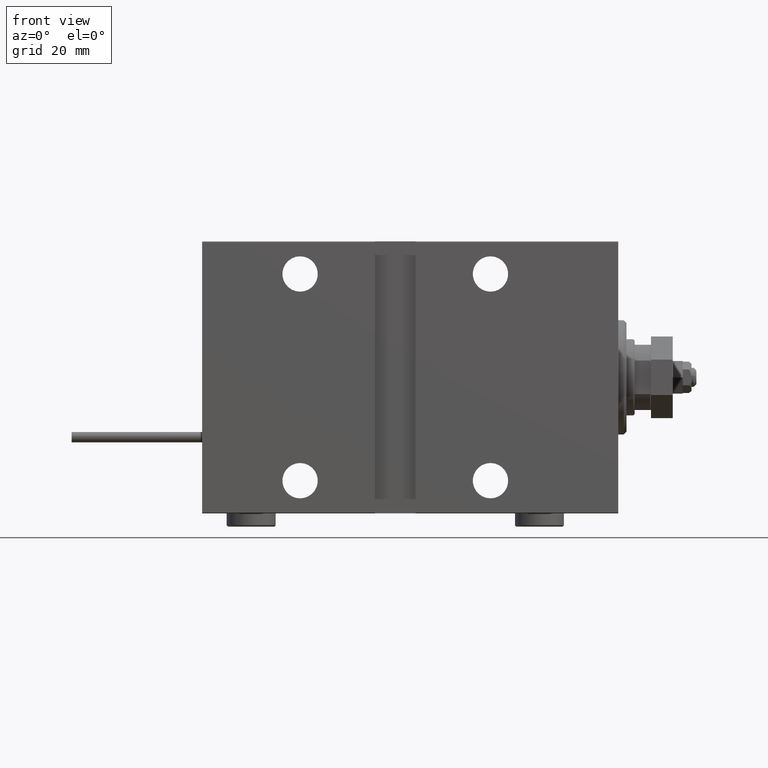
[diagram: clean part render]
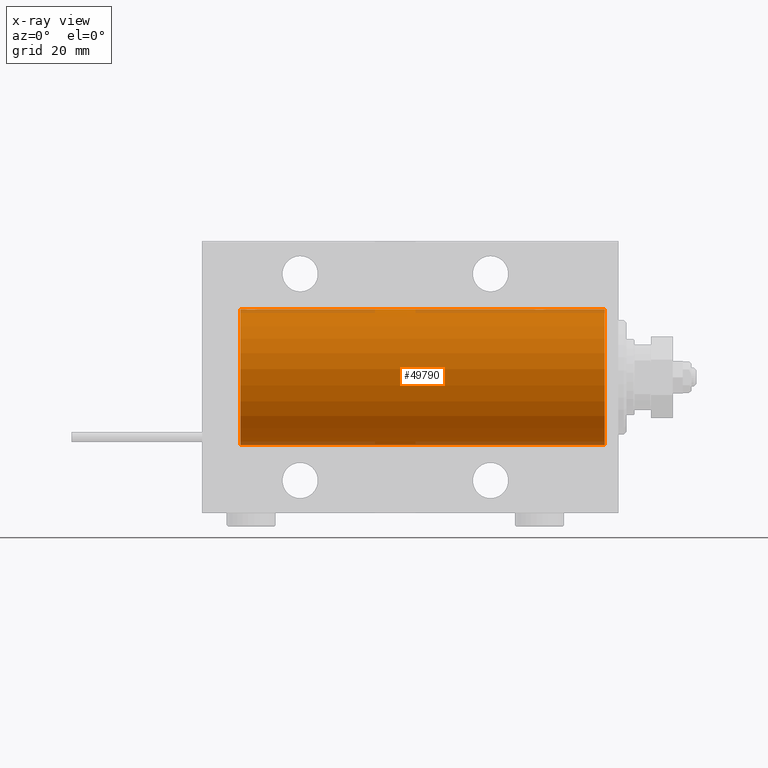
[diagram: x-ray — body ghosted, one internal face saturated and labeled with its STEP entity id]
A machine part, front view, then the same camera in x-ray: the body is ghosted and one INTERNAL B-rep face — a face not visible from any outside direction — is saturated and labeled: STEP entity #49790.
In plain terms, the highlighted cylindrical surface (partial cylindrical patch) has radius 25 mm, axis along (1, 0, -0).
Its self-contained STEP definition (entity closure, byte-faithful):
#273 = CARTESIAN_POINT ( 'NONE',  ( 136.2530411352993838, 2.169541443998005192, 24.90585268157804322 ) ) ;
#429 = CARTESIAN_POINT ( 'NONE',  ( 5.000000000000004441, 0.000000000000000000, 0.000000000000000000 ) ) ;
#786 = CARTESIAN_POINT ( 'NONE',  ( 132.5163588498569709, 0.3289998300458046310, 24.99834914448732803 ) ) ;
#1020 = EDGE_CURVE ( 'NONE', #35594, #18923, #32090, .T. ) ;
#1302 = LINE ( 'NONE', #32955, #9771 ) ;
#2682 = CARTESIAN_POINT ( 'NONE',  ( 31.42019035479157907, 0.6474866336855856774, 24.99212517028518121 ) ) ;
#2934 = CARTESIAN_POINT ( 'NONE',  ( 31.24651678820869805, 1.109060198064599101, 24.97584694923137860 ) ) ;
#3184 = CARTESIAN_POINT ( 'NONE',  ( 26.75307623591045569, 1.108237982093032592, 24.97588368351298271 ) ) ;
#3374 = CARTESIAN_POINT ( 'NONE',  ( 137.4201903547915720, 0.6474866336855732429, 24.99212517028518477 ) ) ;
#3791 = ORIENTED_EDGE ( 'NONE', *, *, #6341, .F. ) ;
#4669 = CARTESIAN_POINT ( 'NONE',  ( 132.7530762359104415, 1.108237982093033258, 24.97588368351298271 ) ) ;
#5049 = ORIENTED_EDGE ( 'NONE', *, *, #18007, .T. ) ;
#5180 = CARTESIAN_POINT ( 'NONE',  ( 133.7462846651880852, 2.169035936979782697, 24.90589343070811168 ) ) ;
#5261 = EDGE_LOOP ( 'NONE', ( #3791, #33122, #18364, #7113, #28867, #40379, #47428, #5049 ) ) ;
#5392 = CARTESIAN_POINT ( 'NONE',  ( 132.5000000000000000, -1.941505016884693205E-23, 25.00000000000000000 ) ) ;
#5687 = CARTESIAN_POINT ( 'NONE',  ( 134.6719822772500095, 2.483775543901334260, 24.87633190989611265 ) ) ;
#6341 = EDGE_CURVE ( 'NONE', #40388, #41968, #1302, .T. ) ;
#6578 = CARTESIAN_POINT ( 'NONE',  ( 29.16407969376736986, 2.499940606140133692, 24.87469189697262095 ) ) ;
#6832 = CARTESIAN_POINT ( 'NONE',  ( 29.32637449227344462, 2.484060984458441368, 24.87630362147113416 ) ) ;
#7088 = CARTESIAN_POINT ( 'NONE',  ( 30.88269712975891323, 1.652881481536638386, 24.94556728625771669 ) ) ;
#7113 = ORIENTED_EDGE ( 'NONE', *, *, #27770, .T. ) ;
#7174 = VERTEX_POINT ( 'NONE', #21796 ) ;
#7285 = CARTESIAN_POINT ( 'NONE',  ( 137.4837686826915899, 0.3278008924763841092, 24.99836206720143394 ) ) ;
#7403 = CARTESIAN_POINT ( 'NONE',  ( 31.50000000000000000, -6.390602579065537931E-15, 25.00000000000000000 ) ) ;
#7974 = CARTESIAN_POINT ( 'NONE',  ( 139.0000000000000000, 0.000000000000000000, 25.00000000000000000 ) ) ;
#8061 = CARTESIAN_POINT ( 'NONE',  ( 137.3720639145759037, 0.8063280894284573508, 24.98745245851526064 ) ) ;
#8314 = CARTESIAN_POINT ( 'NONE',  ( 136.6521499785082767, 1.883339088673198658, 24.92922739080161065 ) ) ;
#8482 = VECTOR ( 'NONE', #32896, 1000.000000000000000 ) ;
#9082 = CARTESIAN_POINT ( 'NONE',  ( 132.5000000000000000, -1.941505016884693205E-23, 25.00000000000000000 ) ) ;
#9204 = B_SPLINE_CURVE_WITH_KNOTS ( 'NONE', 3,
 ( #24156, #48052, #7285, #3374, #8061, #23892, #19206, #35053, #23109, #8314, #35827, #273, #12213, #20753, #40267, #12979, #13484, #44659, #5687, #25418, #40773, #24664, #5180, #25159, #29297, #41022, #48571, #24914, #4669, #33193, #45172, #786, #28270, #9082 ),
 .UNSPECIFIED., .F., .F.,
 ( 4, 2, 2, 2, 2, 2, 2, 2, 2, 2, 2, 2, 2, 2, 2, 2, 4 ),
 ( 1.364608529794415244E-18, 0.0004888140276038946061, 0.0009776280552077876943, 0.001466442082811681216, 0.001955256110415574955, 0.002444070138019468260, 0.002932884165623362432, 0.003421698193227255737, 0.003910512220831149910, 0.004399326248435043649, 0.004888140276038935653, 0.005376954303642829391, 0.005865768331246723130, 0.006354582358850616002, 0.006843396386454508873, 0.007332210414058401744, 0.007821024441662296350 ),
 .UNSPECIFIED. ) ;
#9771 = VECTOR ( 'NONE', #13747, 1000.000000000000000 ) ;
#10729 = CARTESIAN_POINT ( 'NONE',  ( 28.67198227724997395, 2.483775543901335148, 24.87633190989611265 ) ) ;
#10902 = EDGE_CURVE ( 'NONE', #7174, #31014, #16042, .T. ) ;
#11064 = DIRECTION ( 'NONE',  ( -1.000000000000000000, 0.000000000000000000, 0.000000000000000000 ) ) ;
#11525 = FACE_OUTER_BOUND ( 'NONE', #5261, .T. ) ;
#12213 = CARTESIAN_POINT ( 'NONE',  ( 136.1076599552390292, 2.247131495942868984, 24.89888190765473297 ) ) ;
#12675 = LINE ( 'NONE', #12924, #8482 ) ;
#12924 = CARTESIAN_POINT ( 'NONE',  ( 139.0000000000000000, 0.000000000000000000, 25.00000000000000000 ) ) ;
#12979 = CARTESIAN_POINT ( 'NONE',  ( 135.3263744922734020, 2.484060984458439592, 24.87630362147113416 ) ) ;
#13484 = CARTESIAN_POINT ( 'NONE',  ( 135.1640796937674054, 2.499940606140128807, 24.87469189697262095 ) ) ;
#13747 = DIRECTION ( 'NONE',  ( -1.000000000000000000, -0.000000000000000000, -0.000000000000000000 ) ) ;
#13825 = EDGE_CURVE ( 'NONE', #39252, #35594, #46229, .T. ) ;
#15390 = CARTESIAN_POINT ( 'NONE',  ( 27.89254763180203511, 2.247309494740947322, 24.89886665287248135 ) ) ;
#15856 = CARTESIAN_POINT ( 'NONE',  ( 137.5000000000000000, 1.404322005998729010E-15, 25.00000000000000000 ) ) ;
#16042 = LINE ( 'NONE', #20696, #25659 ) ;
#16261 = DIRECTION ( 'NONE',  ( -1.000000000000000000, 0.000000000000000000, 0.000000000000000000 ) ) ;
#16602 = CARTESIAN_POINT ( 'NONE',  ( 26.50000000000000355, -1.940558383798427991E-23, 25.00000000000000000 ) ) ;
#16845 = EDGE_CURVE ( 'NONE', #21347, #39252, #12675, .T. ) ;
#18007 = EDGE_CURVE ( 'NONE', #18923, #41968, #25805, .T. ) ;
#18364 = ORIENTED_EDGE ( 'NONE', *, *, #10902, .T. ) ;
#18508 = CARTESIAN_POINT ( 'NONE',  ( 30.25304113529935535, 2.169541443998014518, 24.90585268157805032 ) ) ;
#18923 = VERTEX_POINT ( 'NONE', #22518 ) ;
#19116 = DIRECTION ( 'NONE',  ( -1.000000000000000000, -0.000000000000000000, -0.000000000000000000 ) ) ;
#19206 = CARTESIAN_POINT ( 'NONE',  ( 137.1697045640987653, 1.252624798282884644, 24.96896960740658855 ) ) ;
#19266 = CARTESIAN_POINT ( 'NONE',  ( 31.48376868269157924, 0.3278008924763983201, 24.99836206720143394 ) ) ;
#19536 = CARTESIAN_POINT ( 'NONE',  ( 31.16970456409869072, 1.252624798282899521, 24.96896960740658500 ) ) ;
#20696 = CARTESIAN_POINT ( 'NONE',  ( 139.0000000000000000, 0.000000000000000000, 25.00000000000000000 ) ) ;
#20753 = CARTESIAN_POINT ( 'NONE',  ( 135.8068358888714044, 2.371819214216747351, 24.88731391344729360 ) ) ;
#21347 = VERTEX_POINT ( 'NONE', #5392 ) ;
#21796 = CARTESIAN_POINT ( 'NONE',  ( 139.0000000000000000, 0.000000000000000000, 25.00000000000000000 ) ) ;
#22412 = CARTESIAN_POINT ( 'NONE',  ( 27.11576698070013336, 1.651337078997076935, 24.94567646296264840 ) ) ;
#22518 = CARTESIAN_POINT ( 'NONE',  ( 5.000000000000004441, 0.000000000000000000, 25.00000000000000000 ) ) ;
#22531 = AXIS2_PLACEMENT_3D ( 'NONE', #39314, #34128, #49993 ) ;
#22661 = CARTESIAN_POINT ( 'NONE',  ( 26.51635884985690694, 0.3289998300458016889, 24.99834914448732803 ) ) ;
#22913 = CARTESIAN_POINT ( 'NONE',  ( 26.58033563915884656, 0.6495680347195822435, 24.99207398768919219 ) ) ;
#22995 = DIRECTION ( 'NONE',  ( 0.000000000000000000, 0.000000000000000000, 1.000000000000000000 ) ) ;
#23109 = CARTESIAN_POINT ( 'NONE',  ( 136.8826971297589239, 1.652881481536639718, 24.94556728625771669 ) ) ;
#23470 = CYLINDRICAL_SURFACE ( 'NONE', #22531, 25.00000000000000000 ) ;
#23892 = CARTESIAN_POINT ( 'NONE',  ( 137.2465167882087655, 1.109060198064598213, 24.97584694923138215 ) ) ;
#24156 = CARTESIAN_POINT ( 'NONE',  ( 137.5000000000000000, 1.404322005998729010E-15, 25.00000000000000000 ) ) ;
#24664 = CARTESIAN_POINT ( 'NONE',  ( 133.8925476318019889, 2.247309494740952651, 24.89886665287248846 ) ) ;
#24914 = CARTESIAN_POINT ( 'NONE',  ( 132.8313818174752328, 1.254434665533497251, 24.96887599906796851 ) ) ;
#25159 = CARTESIAN_POINT ( 'NONE',  ( 133.4754965581282136, 1.988066470813637743, 24.92099187803979632 ) ) ;
#25418 = CARTESIAN_POINT ( 'NONE',  ( 134.3512565726736341, 2.419890192637116577, 24.88262770889313202 ) ) ;
#25659 = VECTOR ( 'NONE', #31864, 1000.000000000000000 ) ;
#25794 = CARTESIAN_POINT ( 'NONE',  ( 139.0000000000000000, 3.061616997868383043E-15, -25.00000000000000000 ) ) ;
#25805 = CIRCLE ( 'NONE', #31577, 25.00000000000000000 ) ;
#26546 = CARTESIAN_POINT ( 'NONE',  ( 27.74628466518807457, 2.169035936979781809, 24.90589343070811168 ) ) ;
#27067 = CARTESIAN_POINT ( 'NONE',  ( 5.000000000000004441, 3.061616997868383043E-15, -25.00000000000000000 ) ) ;
#27305 = CARTESIAN_POINT ( 'NONE',  ( 31.49999999999996447, 0.1652919547268394962, 25.00000000000000355 ) ) ;
#27770 = EDGE_CURVE ( 'NONE', #31014, #21347, #9204, .T. ) ;
#28270 = CARTESIAN_POINT ( 'NONE',  ( 132.5000000000000568, 0.1632133729155549051, 25.00000000000001421 ) ) ;
#28867 = ORIENTED_EDGE ( 'NONE', *, *, #16845, .T. ) ;
#29297 = CARTESIAN_POINT ( 'NONE',  ( 133.3492479364520875, 1.884745564839658716, 24.92912799315484662 ) ) ;
#30436 = CARTESIAN_POINT ( 'NONE',  ( 29.80683588887132984, 2.371819214216750460, 24.88731391344728650 ) ) ;
#30773 = CARTESIAN_POINT ( 'NONE',  ( 139.0000000000000000, 0.000000000000000000, 0.000000000000000000 ) ) ;
#30953 = CARTESIAN_POINT ( 'NONE',  ( 26.50000000000001421, 0.1632133729155533231, 25.00000000000001421 ) ) ;
#31014 = VERTEX_POINT ( 'NONE', #15856 ) ;
#31208 = CARTESIAN_POINT ( 'NONE',  ( 26.83138181747519369, 1.254434665533500803, 24.96887599906796851 ) ) ;
#31577 = AXIS2_PLACEMENT_3D ( 'NONE', #429, #16261, #51068 ) ;
#31711 = EDGE_CURVE ( 'NONE', #7174, #40388, #48593, .T. ) ;
#31864 = DIRECTION ( 'NONE',  ( -1.000000000000000000, -0.000000000000000000, -0.000000000000000000 ) ) ;
#32090 = LINE ( 'NONE', #7974, #49434 ) ;
#32896 = DIRECTION ( 'NONE',  ( -1.000000000000000000, -0.000000000000000000, -0.000000000000000000 ) ) ;
#32955 = CARTESIAN_POINT ( 'NONE',  ( 139.0000000000000000, 3.061616997868383043E-15, -25.00000000000000000 ) ) ;
#33122 = ORIENTED_EDGE ( 'NONE', *, *, #31711, .F. ) ;
#33193 = CARTESIAN_POINT ( 'NONE',  ( 132.6276289080142021, 0.8054273576766354248, 24.98748174524255106 ) ) ;
#34128 = DIRECTION ( 'NONE',  ( -1.000000000000000000, -0.000000000000000000, -0.000000000000000000 ) ) ;
#34854 = CARTESIAN_POINT ( 'NONE',  ( 29.64916515999325952, 2.419847904056432686, 24.88263203448060423 ) ) ;
#35053 = CARTESIAN_POINT ( 'NONE',  ( 136.9882466682194320, 1.524323445682828515, 24.95385641887460082 ) ) ;
#35111 = CARTESIAN_POINT ( 'NONE',  ( 28.35125657267361632, 2.419890192637115245, 24.88262770889313202 ) ) ;
#35373 = CARTESIAN_POINT ( 'NONE',  ( 30.65214997850824119, 1.883339088673199546, 24.92922739080161065 ) ) ;
#35594 = VERTEX_POINT ( 'NONE', #16602 ) ;
#35827 = CARTESIAN_POINT ( 'NONE',  ( 136.5263350351233953, 1.986787236855539263, 24.92109717386377810 ) ) ;
#38260 = CARTESIAN_POINT ( 'NONE',  ( 26.62762890801418791, 0.8054273576766343146, 24.98748174524255106 ) ) ;
#38513 = CARTESIAN_POINT ( 'NONE',  ( 31.37206391457592858, 0.8063280894284573508, 24.98745245851525354 ) ) ;
#39252 = VERTEX_POINT ( 'NONE', #7403 ) ;
#39278 = CARTESIAN_POINT ( 'NONE',  ( 30.52633503512340951, 1.986787236855550143, 24.92109717386378165 ) ) ;
#39314 = CARTESIAN_POINT ( 'NONE',  ( 139.0000000000000000, 0.000000000000000000, 0.000000000000000000 ) ) ;
#40267 = CARTESIAN_POINT ( 'NONE',  ( 135.6491651599932595, 2.419847904056434018, 24.88263203448060423 ) ) ;
#40379 = ORIENTED_EDGE ( 'NONE', *, *, #13825, .T. ) ;
#40388 = VERTEX_POINT ( 'NONE', #25794 ) ;
#40773 = CARTESIAN_POINT ( 'NONE',  ( 134.1953608670018525, 2.372637051600625213, 24.88723676875459034 ) ) ;
#41022 = CARTESIAN_POINT ( 'NONE',  ( 133.1157669807001298, 1.651337078997088481, 24.94567646296264840 ) ) ;
#41968 = VERTEX_POINT ( 'NONE', #27067 ) ;
#42163 = CARTESIAN_POINT ( 'NONE',  ( 30.10765995523901495, 2.247131495942867208, 24.89888190765473297 ) ) ;
#42411 = CARTESIAN_POINT ( 'NONE',  ( 27.47549655812820291, 1.988066470813635966, 24.92099187803979632 ) ) ;
#42920 = CARTESIAN_POINT ( 'NONE',  ( 31.50000000000000000, -6.390602579065537931E-15, 25.00000000000000000 ) ) ;
#43186 = CARTESIAN_POINT ( 'NONE',  ( 30.98824666821940355, 1.524323445682842726, 24.95385641887459016 ) ) ;
#44659 = CARTESIAN_POINT ( 'NONE',  ( 134.8377352338661979, 2.500059064463601821, 24.87467999146394959 ) ) ;
#45172 = CARTESIAN_POINT ( 'NONE',  ( 132.5803356391588750, 0.6495680347195841309, 24.99207398768919219 ) ) ;
#46095 = AXIS2_PLACEMENT_3D ( 'NONE', #30773, #11064, #22995 ) ;
#46229 = B_SPLINE_CURVE_WITH_KNOTS ( 'NONE', 3,
 ( #42920, #27305, #19266, #2682, #38513, #2934, #19536, #43186, #7088, #35373, #39278, #18508, #42163, #30436, #34854, #6832, #6578, #50715, #10729, #35111, #47342, #15390, #26546, #42411, #50969, #22412, #50461, #31208, #3184, #38260, #22913, #22661, #30953, #51226 ),
 .UNSPECIFIED., .F., .F.,
 ( 4, 2, 2, 2, 2, 2, 2, 2, 2, 2, 2, 2, 2, 2, 2, 2, 4 ),
 ( 1.078933239829998775E-17, 0.0004888140276039008945, 0.0009776280552077909469, 0.001466442082811681433, 0.001955256110415571919, 0.002444070138019462188, 0.002932884165623352891, 0.003421698193227243161, 0.003910512220831133430, 0.004399326248435023699, 0.004888140276038913101, 0.005376954303642803371, 0.005865768331246693640, 0.006354582358850583909, 0.006843396386454473311, 0.007332210414058363580, 0.007821024441662254717 ),
 .UNSPECIFIED. ) ;
#47342 = CARTESIAN_POINT ( 'NONE',  ( 28.19536086700184896, 2.372637051600622105, 24.88723676875457969 ) ) ;
#47428 = ORIENTED_EDGE ( 'NONE', *, *, #1020, .T. ) ;
#48052 = CARTESIAN_POINT ( 'NONE',  ( 137.5000000000000000, 0.1652919547268416611, 25.00000000000000355 ) ) ;
#48571 = CARTESIAN_POINT ( 'NONE',  ( 133.0124116538790986, 1.525124164792361459, 24.95380474534677262 ) ) ;
#48593 = CIRCLE ( 'NONE', #46095, 25.00000000000000000 ) ;
#49434 = VECTOR ( 'NONE', #19116, 1000.000000000000000 ) ;
#49790 = ADVANCED_FACE ( 'NONE', ( #11525 ), #23470, .F. ) ;
#49993 = DIRECTION ( 'NONE',  ( 0.000000000000000000, 0.000000000000000000, 1.000000000000000000 ) ) ;
#50461 = CARTESIAN_POINT ( 'NONE',  ( 27.01241165387908083, 1.525124164792364567, 24.95380474534677262 ) ) ;
#50715 = CARTESIAN_POINT ( 'NONE',  ( 28.83773523386616944, 2.500059064463603153, 24.87467999146394959 ) ) ;
#50969 = CARTESIAN_POINT ( 'NONE',  ( 27.34924793645206975, 1.884745564839649612, 24.92912799315484662 ) ) ;
#51068 = DIRECTION ( 'NONE',  ( 0.000000000000000000, 0.000000000000000000, 1.000000000000000000 ) ) ;
#51226 = CARTESIAN_POINT ( 'NONE',  ( 26.50000000000000355, -1.940558383798427991E-23, 25.00000000000000000 ) ) ;